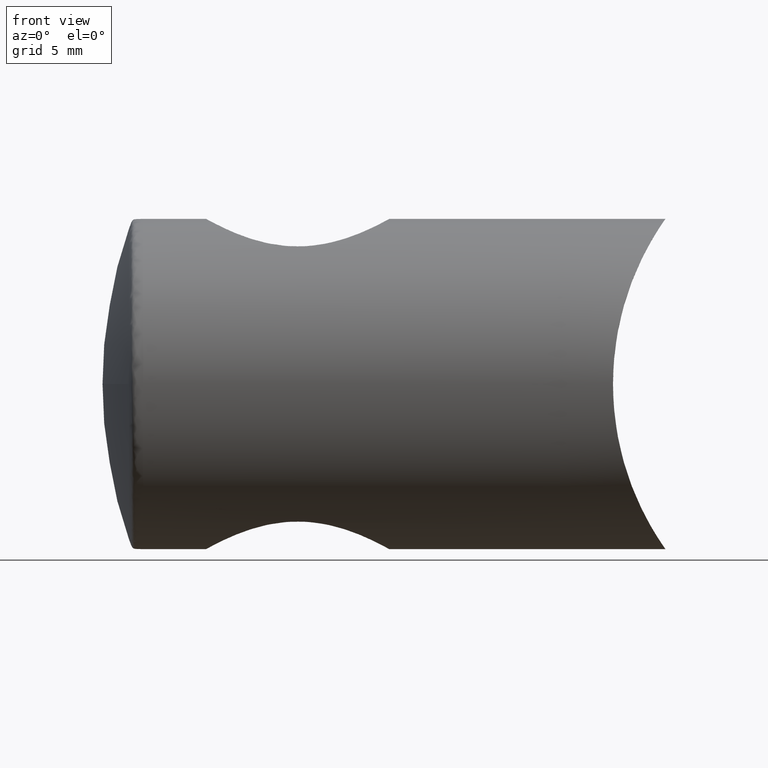
[diagram: clean part render]
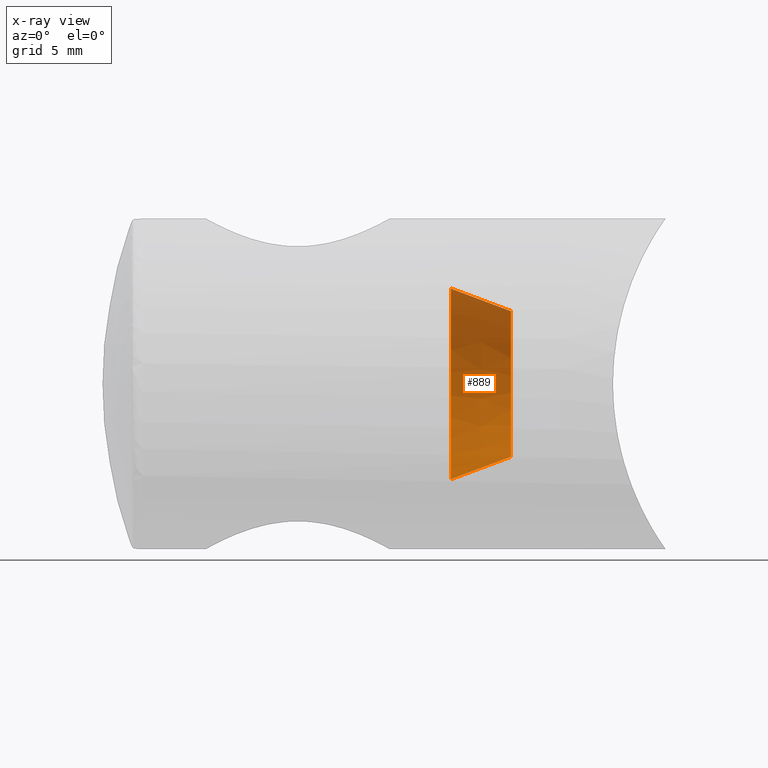
[diagram: x-ray — body ghosted, one internal face saturated and labeled with its STEP entity id]
A machine part, front view, then the same camera in x-ray: the body is ghosted and one INTERNAL B-rep face — a face not visible from any outside direction — is saturated and labeled: STEP entity #889.
In plain terms, the highlighted conical surface has half-angle 20.556 deg.
Its self-contained STEP definition (entity closure, byte-faithful):
#415 = CARTESIAN_POINT ( 'NONE',  ( -13.58848920863309600, 5.939536975864660000E-016, -4.849999999999997900 ) ) ;
#434 = DIRECTION ( 'NONE',  ( -1.000000000000000000, 0.0000000000000000000, 0.0000000000000000000 ) ) ;
#611 = AXIS2_PLACEMENT_3D ( 'NONE', #3816, #3404, #2140 ) ;
#757 = LINE ( 'NONE', #2084, #3492 ) ;
#796 = CARTESIAN_POINT ( 'NONE',  ( -17.58848920863309600, 7.776507174585690200E-016, 6.349999999999997900 ) ) ;
#814 = DIRECTION ( 'NONE',  ( 0.0000000000000000000, 0.0000000000000000000, 1.000000000000000000 ) ) ;
#840 = EDGE_CURVE ( 'NONE', #3669, #931, #2160, .T. ) ;
#889 = ADVANCED_FACE ( 'NONE', ( #4502 ), #3707, .T. ) ;
#931 = VERTEX_POINT ( 'NONE', #796 ) ;
#984 = DIRECTION ( 'NONE',  ( -0.9363291775690444400, 4.300021988468266100E-017, -0.3511234415883917600 ) ) ;
#1536 = EDGE_CURVE ( 'NONE', #4210, #5277, #4160, .T. ) ;
#1623 = DIRECTION ( 'NONE',  ( 1.000000000000000000, -0.0000000000000000000, -0.0000000000000000000 ) ) ;
#2073 = CARTESIAN_POINT ( 'NONE',  ( -17.58848920863309600, 0.0000000000000000000, 0.0000000000000000000 ) ) ;
#2084 = CARTESIAN_POINT ( 'NONE',  ( -13.58848920863309600, 0.0000000000000000000, 4.849999999999997900 ) ) ;
#2138 = EDGE_CURVE ( 'NONE', #5277, #931, #757, .T. ) ;
#2140 = DIRECTION ( 'NONE',  ( 0.0000000000000000000, 0.0000000000000000000, -1.000000000000000000 ) ) ;
#2160 = CIRCLE ( 'NONE', #3851, 6.349999999999997900 ) ;
#2574 = CARTESIAN_POINT ( 'NONE',  ( -13.58848920863309600, 6.858022075225175600E-016, -4.849999999999997900 ) ) ;
#3331 = CARTESIAN_POINT ( 'NONE',  ( -13.58848920863309600, 0.0000000000000000000, 4.849999999999997900 ) ) ;
#3404 = DIRECTION ( 'NONE',  ( 1.000000000000000000, -0.0000000000000000000, -0.0000000000000000000 ) ) ;
#3492 = VECTOR ( 'NONE', #5515, 1000.000000000000200 ) ;
#3618 = ORIENTED_EDGE ( 'NONE', *, *, #5318, .T. ) ;
#3669 = VERTEX_POINT ( 'NONE', #4614 ) ;
#3707 = CONICAL_SURFACE ( 'NONE', #4712, 4.849999999999997900, 0.3587706702705723000 ) ;
#3732 = VECTOR ( 'NONE', #984, 1000.000000000000200 ) ;
#3742 = ORIENTED_EDGE ( 'NONE', *, *, #840, .T. ) ;
#3816 = CARTESIAN_POINT ( 'NONE',  ( -13.58848920863309600, 0.0000000000000000000, 0.0000000000000000000 ) ) ;
#3851 = AXIS2_PLACEMENT_3D ( 'NONE', #2073, #1623, #4607 ) ;
#4160 = CIRCLE ( 'NONE', #611, 4.849999999999997900 ) ;
#4210 = VERTEX_POINT ( 'NONE', #2574 ) ;
#4339 = ORIENTED_EDGE ( 'NONE', *, *, #2138, .F. ) ;
#4474 = ORIENTED_EDGE ( 'NONE', *, *, #1536, .F. ) ;
#4502 = FACE_OUTER_BOUND ( 'NONE', #4957, .T. ) ;
#4607 = DIRECTION ( 'NONE',  ( 0.0000000000000000000, 0.0000000000000000000, -1.000000000000000000 ) ) ;
#4614 = CARTESIAN_POINT ( 'NONE',  ( -17.58848920863309600, 0.0000000000000000000, -6.349999999999997900 ) ) ;
#4690 = CARTESIAN_POINT ( 'NONE',  ( -13.58848920863309600, 0.0000000000000000000, 0.0000000000000000000 ) ) ;
#4712 = AXIS2_PLACEMENT_3D ( 'NONE', #4690, #434, #814 ) ;
#4870 = LINE ( 'NONE', #415, #3732 ) ;
#4957 = EDGE_LOOP ( 'NONE', ( #4474, #3618, #3742, #4339 ) ) ;
#5277 = VERTEX_POINT ( 'NONE', #3331 ) ;
#5318 = EDGE_CURVE ( 'NONE', #4210, #3669, #4870, .T. ) ;
#5515 = DIRECTION ( 'NONE',  ( -0.9363291775690444400, 0.0000000000000000000, 0.3511234415883917600 ) ) ;